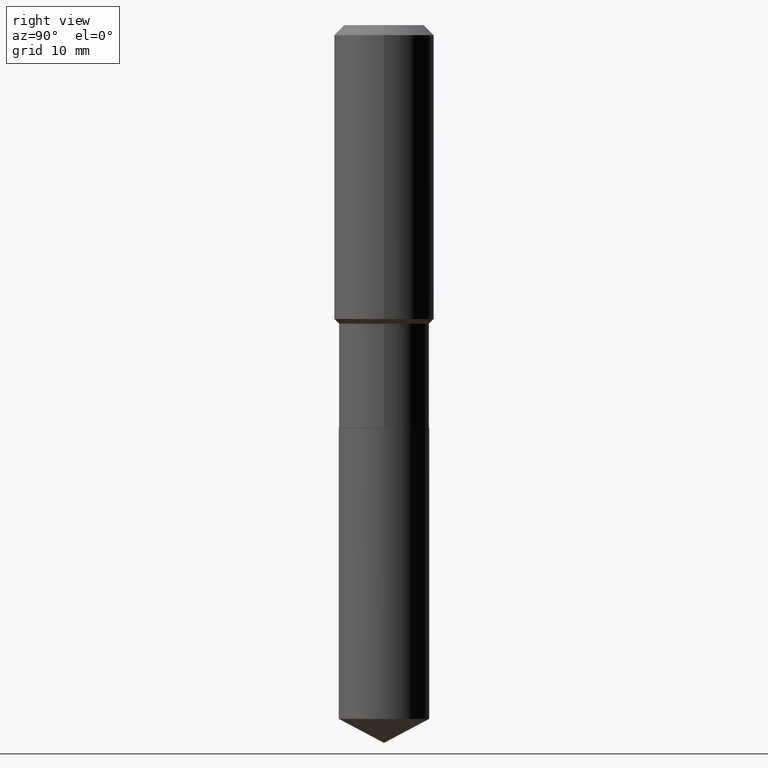
[diagram: clean part render]
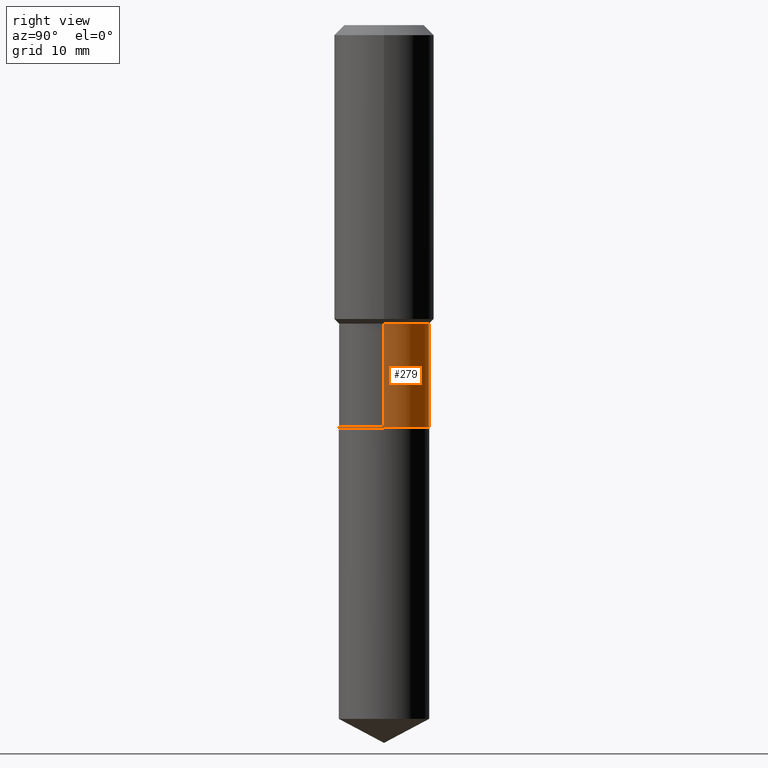
[diagram: same view with one face highlighted and labeled with its STEP entity id]
A machine part, right view. The second image highlights one B-rep face of the part: STEP entity #279.
In plain terms, the highlighted cylindrical surface (partial cylindrical patch) has radius 7.2504 mm, axis along (-0, 0, 1).
Its self-contained STEP definition (entity closure, byte-faithful):
#3 = LINE ( 'NONE', #375, #60 ) ;
#5 = CARTESIAN_POINT ( 'NONE',  ( 0.2854499999999999260, -8.567396909253302236E-15, -1.882899999999999796 ) ) ;
#33 = DIRECTION ( 'NONE',  ( -2.445468806185136597E-29, 3.491481338843145583E-15, 1.000000000000000000 ) ) ;
#44 = ORIENTED_EDGE ( 'NONE', *, *, #379, .F. ) ;
#60 = VECTOR ( 'NONE', #149, 39.37007874015748143 ) ;
#63 = DIRECTION ( 'NONE',  ( -2.445468806185136597E-29, 3.491481338843145583E-15, 1.000000000000000000 ) ) ;
#102 = EDGE_CURVE ( 'NONE', #262, #241, #467, .T. ) ;
#111 = CARTESIAN_POINT ( 'NONE',  ( 0.2854500000000000370, -1.085780866753440485E-14, -2.538899999999999491 ) ) ;
#120 = EDGE_CURVE ( 'NONE', #241, #295, #3, .T. ) ;
#144 = AXIS2_PLACEMENT_3D ( 'NONE', #188, #33, #223 ) ;
#149 = DIRECTION ( 'NONE',  ( -2.445468806185136877E-29, 3.491481338843145188E-15, 1.000000000000000000 ) ) ;
#156 = VERTEX_POINT ( 'NONE', #5 ) ;
#162 = ORIENTED_EDGE ( 'NONE', *, *, #102, .T. ) ;
#177 = LINE ( 'NONE', #477, #256 ) ;
#179 = CYLINDRICAL_SURFACE ( 'NONE', #298, 0.2854499999999999815 ) ;
#181 = CARTESIAN_POINT ( 'NONE',  ( -0.2854499999999999260, -5.691071852821103920E-15, -1.882899999999999796 ) ) ;
#188 = CARTESIAN_POINT ( 'NONE',  ( 4.604573215165993234E-29, -6.574110212907758463E-15, -1.882899999999999796 ) ) ;
#208 = EDGE_LOOP ( 'NONE', ( #162, #243, #240, #44 ) ) ;
#214 = DIRECTION ( 'NONE',  ( -2.445468806185136597E-29, 3.491481338843145583E-15, 1.000000000000000000 ) ) ;
#215 = DIRECTION ( 'NONE',  ( 1.000000000000000000, -6.982962677686267499E-15, 0.000000000000000000 ) ) ;
#223 = DIRECTION ( 'NONE',  ( 1.000000000000000000, -6.982962677686267499E-15, 0.000000000000000000 ) ) ;
#240 = ORIENTED_EDGE ( 'NONE', *, *, #317, .F. ) ;
#241 = VERTEX_POINT ( 'NONE', #452 ) ;
#243 = ORIENTED_EDGE ( 'NONE', *, *, #120, .T. ) ;
#256 = VECTOR ( 'NONE', #441, 39.37007874015748143 ) ;
#262 = VERTEX_POINT ( 'NONE', #111 ) ;
#272 = AXIS2_PLACEMENT_3D ( 'NONE', #400, #63, #215 ) ;
#279 = ADVANCED_FACE ( 'NONE', ( #376 ), #179, .T. ) ;
#295 = VERTEX_POINT ( 'NONE', #181 ) ;
#298 = AXIS2_PLACEMENT_3D ( 'NONE', #332, #214, #481 ) ;
#313 = CIRCLE ( 'NONE', #144, 0.2854499999999999260 ) ;
#317 = EDGE_CURVE ( 'NONE', #156, #295, #313, .T. ) ;
#332 = CARTESIAN_POINT ( 'NONE',  ( 0.000000000000000000, 0.000000000000000000, 0.000000000000000000 ) ) ;
#375 = CARTESIAN_POINT ( 'NONE',  ( -0.2854499999999999815, 2.028244239227205849E-15, -1.404110021513262784E-29 ) ) ;
#376 = FACE_OUTER_BOUND ( 'NONE', #208, .T. ) ;
#379 = EDGE_CURVE ( 'NONE', #262, #156, #177, .T. ) ;
#400 = CARTESIAN_POINT ( 'NONE',  ( 6.208800752023442165E-29, -8.864521971188860287E-15, -2.538899999999999491 ) ) ;
#441 = DIRECTION ( 'NONE',  ( -2.445468806185136877E-29, 3.491481338843145188E-15, 1.000000000000000000 ) ) ;
#452 = CARTESIAN_POINT ( 'NONE',  ( -0.2854500000000000370, -5.691071852821102343E-15, -2.538899999999999491 ) ) ;
#467 = CIRCLE ( 'NONE', #272, 0.2854500000000000370 ) ;
#477 = CARTESIAN_POINT ( 'NONE',  ( 0.2854499999999999815, -1.993286696345544561E-15, 1.391904660650949682E-29 ) ) ;
#481 = DIRECTION ( 'NONE',  ( 1.000000000000000000, -6.982962677686265922E-15, 4.876176775795935232E-29 ) ) ;